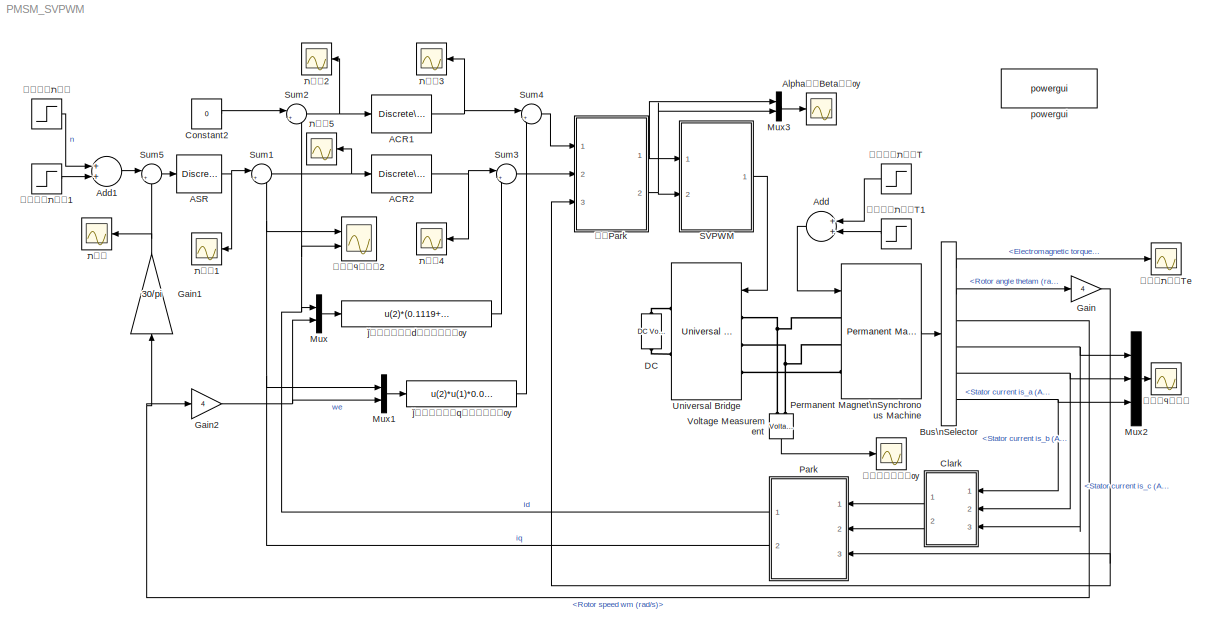
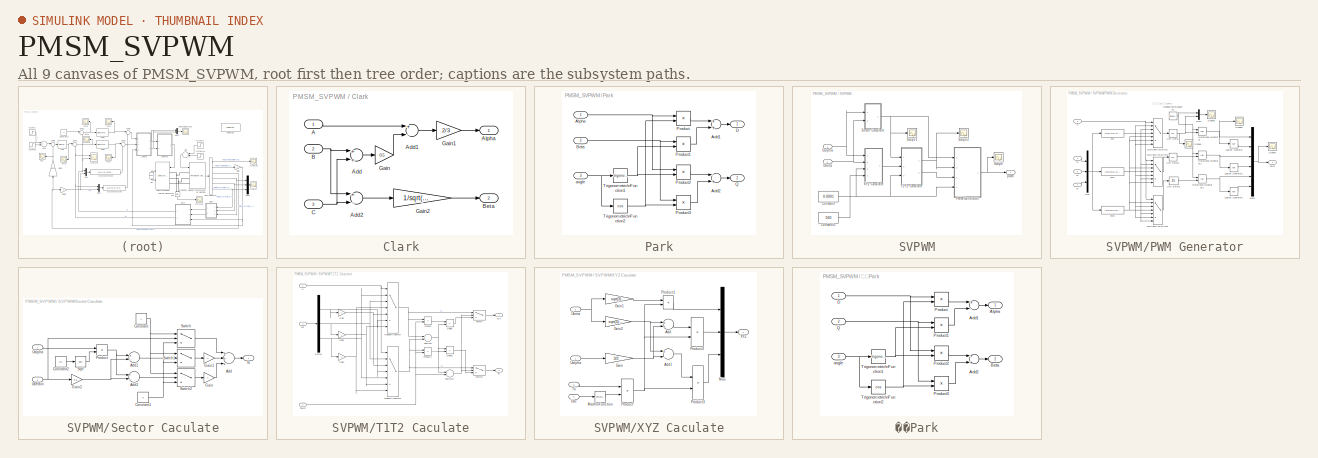
[diagram: thumbnail index - all 9 canvases of the model, root first then tree order]
MODEL PMSM_SVPWM
KIND model
CONFIG InitFcn = flux=0.192;\nLd=0.0006033;\nLq=0.0006668;\nR=0.05;
BLOCK [Reference] ACR1  REF=powerlib_extras/Discrete \nControl Blocks/Discrete\nPI Controller
  Init = 0
  Ki = 80
  Kp = 4
  Par_Limits = [560*0.9*sqrt(1/3) -560*0.9*sqrt(1/3)]
  Ports = [1, 1]
  SID = 353
  SourceBlock = powerlib_extras/Discrete \nControl Blocks/Discrete\nPI Controller
  SourceType = Discrete PI Controller
  Ts = 1e-6
BLOCK [Reference] ACR2  REF=powerlib_extras/Discrete \nControl Blocks/Discrete\nPI Controller
  Init = 0
  Ki = 80
  Kp = 4
  Par_Limits = [560*0.9*sqrt(1/3) -560*0.9*sqrt(1/3)]
  Ports = [1, 1]
  SID = 352
  SourceBlock = powerlib_extras/Discrete \nControl Blocks/Discrete\nPI Controller
  SourceType = Discrete PI Controller
  Ts = 1e-6
BLOCK [Reference] ASR  REF=powerlib_extras/Discrete \nControl Blocks/Discrete\nPI Controller
  Init = 0
  Ki = 200
  Kp = 5
  Par_Limits = [65 -65]
  Ports = [1, 1]
  SID = 350
  SourceBlock = powerlib_extras/Discrete \nControl Blocks/Discrete\nPI Controller
  SourceType = Discrete PI Controller
  Ts = 1e-6
BLOCK [Sum] Add
  InputSameDT = off
  OutDataTypeMode = Inherit via internal rule
  OutDataTypeStr = Inherit: Inherit via internal rule
  Ports = [2, 1]
  SID = 435
  SaturateOnIntegerOverflow = off
BLOCK [Sum] Add1
  InputSameDT = off
  OutDataTypeMode = Inherit via internal rule
  OutDataTypeStr = Inherit: Inherit via internal rule
  Ports = [2, 1]
  SID = 452
  SaturateOnIntegerOverflow = off
BLOCK [Scope] Alpha¡¢BetaµçÑ¹
  DataFormat = StructureWithTime
  Decimation = 1
  Grid = on
  LimitDataPoints = off
  MaxDataPoints = 5000
  Ports = [1]
  SID = 433
  SampleInput = on
  SampleTime = 0.00001
  SaveName = ScopeData10
  SaveToWorkspace = off
  TickLabels = OneTimeTick
  TimeRange = auto
  YMax = 301.59381
  YMin = -109.14429
  ZoomMode = on
BLOCK [BusSelector] Bus\nSelector
  OutputSignals = Electromagnetic torque Te (N*m),Rotor angle thetam (rad),Rotor speed wm (rad/s),Stator current is_c (A),Stator current is_b (A),Stator current is_a (A)
  Ports = [1, 6]
  SID = 264
BLOCK [SubSystem] Clark
  FunctionWithSeparateData = off
  MaskHideContents = off
  MinAlgLoopOccurrences = off
  Opaque = off
  Ports = [3, 2]
  PropExecContextOutsideSubsystem = off
  RTWSystemCode = Auto
  RequestExecContextInheritance = off
  SID = 294
BLOCK [Inport] Clark/A
  IconDisplay = Port number
  SID = 295
BLOCK [Sum] Clark/Add
  InputSameDT = off
  OutDataTypeMode = Inherit via internal rule
  OutDataTypeStr = Inherit: Inherit via internal rule
  Ports = [2, 1]
  SID = 302
  SaturateOnIntegerOverflow = off
BLOCK [Sum] Clark/Add1
  InputSameDT = off
  Inputs = +-
  OutDataTypeMode = Inherit via internal rule
  OutDataTypeStr = Inherit: Inherit via internal rule
  Ports = [2, 1]
  SID = 304
  SaturateOnIntegerOverflow = off
BLOCK [Sum] Clark/Add2
  InputSameDT = off
  Inputs = +-
  OutDataTypeMode = Inherit via internal rule
  OutDataTypeStr = Inherit: Inherit via internal rule
  Ports = [2, 1]
  SID = 306
  SaturateOnIntegerOverflow = off
BLOCK [Outport] Clark/Alpha
  IconDisplay = Port number
  SID = 296
BLOCK [Inport] Clark/B
  IconDisplay = Port number
  Port = 2
  SID = 297
BLOCK [Outport] Clark/Beta
  IconDisplay = Port number
  Port = 2
  SID = 299
BLOCK [Inport] Clark/C
  IconDisplay = Port number
  Port = 3
  SID = 298
BLOCK [Gain] Clark/Gain
  Gain = 0.5
  OutDataTypeMode = Inherit via internal rule
  OutDataTypeStr = Inherit: Inherit via internal rule
  ParamDataTypeStr = Inherit: Inherit via internal rule
  ParameterDataTypeMode = Inherit via internal rule
  SID = 303
  SaturateOnIntegerOverflow = off
BLOCK [Gain] Clark/Gain1
  Gain = 2/3
  OutDataTypeMode = Inherit via internal rule
  OutDataTypeStr = Inherit: Inherit via internal rule
  ParamDataTypeStr = Inherit: Inherit via internal rule
  ParameterDataTypeMode = Inherit via internal rule
  SID = 305
  SaturateOnIntegerOverflow = off
BLOCK [Gain] Clark/Gain2
  Gain = 1/sqrt(3)
  OutDataTypeMode = Inherit via internal rule
  OutDataTypeStr = Inherit: Inherit via internal rule
  ParamDataTypeStr = Inherit: Inherit via internal rule
  ParameterDataTypeMode = Inherit via internal rule
  SID = 307
  SaturateOnIntegerOverflow = off
BLOCK [Constant] Constant2
  SID = 363
  Value = 0
BLOCK [Reference] DC  REF=powerlib/Electrical\nSources/DC Voltage Source
  Amplitude = 560
  Measurements = None
  Ports = [0, 0, 0, 0, 0, 1, 1]
  SID = 257
  SourceBlock = powerlib/Electrical\nSources/DC Voltage Source
  SourceType = DC Voltage Source
BLOCK [Gain] Gain
  Gain = 4
  OutDataTypeMode = Inherit via internal rule
  OutDataTypeStr = Inherit: Inherit via internal rule
  ParamDataTypeStr = Inherit: Inherit via internal rule
  ParameterDataTypeMode = Inherit via internal rule
  SID = 342
  SaturateOnIntegerOverflow = off
BLOCK [Gain] Gain1
  Gain = 30/pi
  OutDataTypeMode = Inherit via internal rule
  OutDataTypeStr = Inherit: Inherit via internal rule
  ParamDataTypeStr = Inherit: Inherit via internal rule
  ParameterDataTypeMode = Inherit via internal rule
  SID = 360
  SaturateOnIntegerOverflow = off
BLOCK [Gain] Gain2
  Gain = 4
  OutDataTypeMode = Inherit via internal rule
  OutDataTypeStr = Inherit: Inherit via internal rule
  ParamDataTypeStr = Inherit: Inherit via internal rule
  ParameterDataTypeMode = Inherit via internal rule
  SID = 361
  SaturateOnIntegerOverflow = off
BLOCK [Mux] Mux
  DisplayOption = bar
  Inputs = 2
  Ports = [2, 1]
  SID = 362
BLOCK [Mux] Mux1
  DisplayOption = bar
  Inputs = 2
  Ports = [2, 1]
  SID = 367
BLOCK [Mux] Mux2
  DisplayOption = bar
  Inputs = 3
  Ports = [3, 1]
  SID = 370
BLOCK [Mux] Mux3
  DisplayOption = bar
  Inputs = 2
  Ports = [2, 1]
  SID = 432
BLOCK [SubSystem] Park
  FunctionWithSeparateData = off
  MaskHideContents = off
  MinAlgLoopOccurrences = off
  Opaque = off
  Ports = [3, 2]
  PropExecContextOutsideSubsystem = off
  RTWSystemCode = Auto
  RequestExecContextInheritance = off
  SID = 328
BLOCK [Sum] Park/Add1
  InputSameDT = off
  OutDataTypeMode = Inherit via internal rule
  OutDataTypeStr = Inherit: Inherit via internal rule
  Ports = [2, 1]
  SID = 332
  SaturateOnIntegerOverflow = off
BLOCK [Sum] Park/Add2
  InputSameDT = off
  Inputs = -+
  OutDataTypeMode = Inherit via internal rule
  OutDataTypeStr = Inherit: Inherit via internal rule
  Ports = [2, 1]
  SID = 333
  SaturateOnIntegerOverflow = off
BLOCK [Inport] Park/Alpha
  IconDisplay = Port number
  SID = 329
BLOCK [Inport] Park/Beta
  IconDisplay = Port number
  Port = 2
  SID = 330
BLOCK [Outport] Park/D
  IconDisplay = Port number
  SID = 340
BLOCK [Product] Park/Product
  InputSameDT = off
  OutDataTypeMode = Inherit via internal rule
  OutDataTypeStr = Inherit: Inherit via internal rule
  Ports = [2, 1]
  RndMeth = Floor
  SID = 334
  SaturateOnIntegerOverflow = off
BLOCK [Product] Park/Product1
  InputSameDT = off
  OutDataTypeMode = Inherit via internal rule
  OutDataTypeStr = Inherit: Inherit via internal rule
  Ports = [2, 1]
  RndMeth = Floor
  SID = 335
  SaturateOnIntegerOverflow = off
BLOCK [Product] Park/Product2
  InputSameDT = off
  OutDataTypeMode = Inherit via internal rule
  OutDataTypeStr = Inherit: Inherit via internal rule
  Ports = [2, 1]
  RndMeth = Floor
  SID = 336
  SaturateOnIntegerOverflow = off
BLOCK [Product] Park/Product3
  InputSameDT = off
  OutDataTypeMode = Inherit via internal rule
  OutDataTypeStr = Inherit: Inherit via internal rule
  Ports = [2, 1]
  RndMeth = Floor
  SID = 337
  SaturateOnIntegerOverflow = off
BLOCK [Outport] Park/Q
  IconDisplay = Port number
  Port = 2
  SID = 341
BLOCK [Trigonometry] Park/Trigonometric\nFunction1
  Ports = [1, 1]
  SID = 338
BLOCK [Trigonometry] Park/Trigonometric\nFunction2
  Operator = cos
  Ports = [1, 1]
  SID = 339
BLOCK [Inport] Park/angle
  IconDisplay = Port number
  Port = 3
  SID = 331
BLOCK [Reference] Permanent Magnet\nSynchronous Machine  REF=powerlib/Machines/Permanent Magnet\nSynchronous Machine
  Flat = 120
  Flux = 0.1119
  FluxDistribution = Sinusoidal
  Inductance = 8.5e-3
  InitialConditions = [0,0, 0,0]
  InitialConditions5ph = [0 0 0 0 0 0]
  La = 0.000835
  MachineConstant = Flux linkage established by magnets (V.s)
  MeasurementBus = off
  Mechanical = [0.016 0.0002024 4 0]
  MechanicalLoad = Torque Tm
  NbPhases = 3
  PolePairs = 4
  Ports = [1, 1, 0, 0, 0, 3]
  PresetModel = No
  RefAngle = Aligned with phase A axis (original Park)
  Resistance = 0.11
  RotorType = Salient-pole
  SID = 416
  ShowDetailedParameters = on
  SourceBlock = powerlib/Machines/Permanent Magnet\nSynchronous Machine
  SourceType = Permanent Magnet Synchronous Machine
  TorqueCst = 0.6714
  TsBlock = -1
  TsPowergui = 0
  VoltageCst = 81.1857
  dqInductances = [0.0009215 0.001018]
BLOCK [SubSystem] SVPWM
  FunctionWithSeparateData = off
  MaskHideContents = off
  MinAlgLoopOccurrences = off
  Opaque = off
  Ports = [2, 1]
  PropExecContextOutsideSubsystem = off
  RTWSystemCode = Auto
  RequestExecContextInheritance = off
  SID = 128
BLOCK [Constant] SVPWM/Constant
  SID = 131
  Value = 0.0001
BLOCK [Constant] SVPWM/Constant1
  SID = 132
  Value = 560
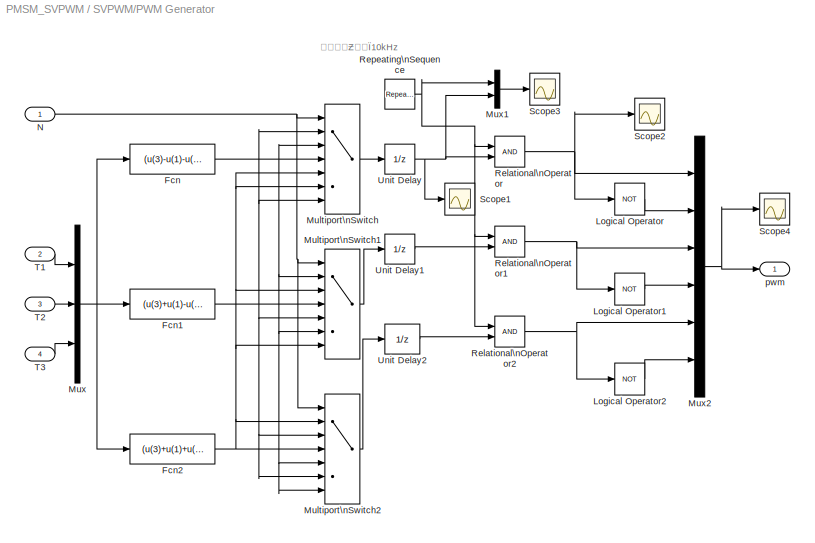
BLOCK [SubSystem] SVPWM/PWM Generator
  FunctionWithSeparateData = off
  MaskHideContents = off
  MinAlgLoopOccurrences = off
  Opaque = off
  Ports = [4, 1]
  PropExecContextOutsideSubsystem = off
  RTWSystemCode = Auto
  RequestExecContextInheritance = off
  SID = 133
BLOCK [Fcn] SVPWM/PWM Generator/Fcn
  Expr = (u(3)-u(1)-u(2))/4
  SID = 141
BLOCK [Fcn] SVPWM/PWM Generator/Fcn1
  Expr = (u(3)+u(1)-u(2))/4
  SID = 142
BLOCK [Fcn] SVPWM/PWM Generator/Fcn2
  Expr = (u(3)+u(1)+u(2))/4
  SID = 143
BLOCK [Logic] SVPWM/PWM Generator/Logical Operator
  AllPortsSameDT = off
  Operator = NOT
  OutDataTypeMode = boolean
  OutDataTypeStr = boolean
  Ports = [1, 1]
  SID = 144
BLOCK [Logic] SVPWM/PWM Generator/Logical Operator1
  AllPortsSameDT = off
  Operator = NOT
  OutDataTypeMode = boolean
  OutDataTypeStr = boolean
  Ports = [1, 1]
  SID = 145
BLOCK [Logic] SVPWM/PWM Generator/Logical Operator2
  AllPortsSameDT = off
  Operator = NOT
  OutDataTypeMode = boolean
  OutDataTypeStr = boolean
  Ports = [1, 1]
  SID = 146
BLOCK [MultiPortSwitch] SVPWM/PWM Generator/Multiport\nSwitch
  InputSameDT = off
  Inputs = 6
  Ports = [7, 1]
  SID = 147
  SaturateOnIntegerOverflow = off
BLOCK [MultiPortSwitch] SVPWM/PWM Generator/Multiport\nSwitch1
  InputSameDT = off
  Inputs = 6
  Ports = [7, 1]
  SID = 148
  SaturateOnIntegerOverflow = off
BLOCK [MultiPortSwitch] SVPWM/PWM Generator/Multiport\nSwitch2
  InputSameDT = off
  Inputs = 6
  Ports = [7, 1]
  SID = 149
  SaturateOnIntegerOverflow = off
BLOCK [Mux] SVPWM/PWM Generator/Mux
  DisplayOption = bar
  Inputs = 3
  Ports = [3, 1]
  SID = 150
BLOCK [Mux] SVPWM/PWM Generator/Mux1
  DisplayOption = bar
  Inputs = 2
  Ports = [2, 1]
  SID = 439
BLOCK [Mux] SVPWM/PWM Generator/Mux2
  DisplayOption = bar
  Inputs = 6
  Ports = [6, 1]
  SID = 151
BLOCK [Inport] SVPWM/PWM Generator/N
  IconDisplay = Port number
  SID = 134
BLOCK [RelationalOperator] SVPWM/PWM Generator/Relational\nOperator
  InputSameDT = off
  LogicOutDataTypeMode = boolean
  OutDataTypeStr = boolean
  Ports = [2, 1]
  SID = 154
BLOCK [RelationalOperator] SVPWM/PWM Generator/Relational\nOperator1
  InputSameDT = off
  LogicOutDataTypeMode = boolean
  OutDataTypeStr = boolean
  Ports = [2, 1]
  SID = 155
BLOCK [RelationalOperator] SVPWM/PWM Generator/Relational\nOperator2
  InputSameDT = off
  LogicOutDataTypeMode = boolean
  OutDataTypeStr = boolean
  Ports = [2, 1]
  SID = 156
BLOCK [Reference] SVPWM/PWM Generator/Repeating\nSequence  REF=simulink/Sources/Repeating\nSequence
  Ports = [0, 1]
  SID = 157
  SourceBlock = simulink/Sources/Repeating\nSequence
  SourceType = Repeating table
  rep_seq_t = [0 0.00005 0.0001]
  rep_seq_y = [0 0.00005 0]
BLOCK [Scope] SVPWM/PWM Generator/Scope1
  DataFormat = Array
  Decimation = 1
  Grid = on
  LimitDataPoints = off
  MaxDataPoints = 5000
  Ports = [1]
  SID = 158
  SampleInput = off
  SampleTime = -1
  SaveName = ScopeData1
  SaveToWorkspace = off
  TickLabels = OneTimeTick
  TimeRange = auto
  YMax = 0.000036
  YMin = -0.000004
  ZoomMode = on
BLOCK [Scope] SVPWM/PWM Generator/Scope2
  DataFormat = Array
  Decimation = 1
  Grid = on
  LimitDataPoints = off
  MaxDataPoints = 5000
  Ports = [1]
  SID = 159
  SampleInput = off
  SampleTime = -1
  SaveName = ScopeData3
  SaveToWorkspace = off
  TickLabels = OneTimeTick
  TimeRange = auto
  YMax = 1.125
  YMin = -0.125
  ZoomMode = on
BLOCK [Scope] SVPWM/PWM Generator/Scope3
  DataFormat = Array
  Decimation = 1
  Grid = on
  LimitDataPoints = off
  MaxDataPoints = 5000
  Ports = [1]
  SID = 438
  SampleInput = on
  SampleTime = 0.000001
  SaveName = ScopeData4
  SaveToWorkspace = off
  TickLabels = OneTimeTick
  TimeRange = auto
  YMax = 0.000056
  YMin = -0.000006
  ZoomMode = on
BLOCK [Scope] SVPWM/PWM Generator/Scope4
  DataFormat = Array
  Decimation = 1
  Grid = on
  LimitDataPoints = off
  MaxDataPoints = 5000
  Ports = [1]
  SID = 161
  SampleInput = off
  SampleTime = -1
  SaveName = ScopeData6
  SaveToWorkspace = off
  TickLabels = OneTimeTick
  TimeRange = auto
  YMax = 10
  YMin = -10
  ZoomMode = on
BLOCK [Inport] SVPWM/PWM Generator/T1
  IconDisplay = Port number
  Port = 2
  SID = 135
BLOCK [Inport] SVPWM/PWM Generator/T2
  IconDisplay = Port number
  Port = 3
  SID = 136
BLOCK [Inport] SVPWM/PWM Generator/T3
  IconDisplay = Port number
  Port = 4
  SID = 137
BLOCK [UnitDelay] SVPWM/PWM Generator/Unit Delay
  SID = 440
  SampleTime = 0.0001
BLOCK [UnitDelay] SVPWM/PWM Generator/Unit Delay1
  SID = 441
  SampleTime = 0.0001
BLOCK [UnitDelay] SVPWM/PWM Generator/Unit Delay2
  SID = 442
  SampleTime = 0.0001
BLOCK [Outport] SVPWM/PWM Generator/pwm
  IconDisplay = Port number
  SID = 162
BLOCK [Scope] SVPWM/Scope
  DataFormat = Array
  Decimation = 1
  Grid = on
  LimitDataPoints = off
  MaxDataPoints = 5000
  Ports = [1]
  SID = 164
  SampleInput = off
  SampleTime = -1
  SaveName = ScopeData
  SaveToWorkspace = off
  TickLabels = OneTimeTick
  TimeRange = auto
  YMax = 10
  YMin = -10
  ZoomMode = on
BLOCK [Scope] SVPWM/Scope1
  DataFormat = Array
  Decimation = 1
  Grid = on
  LimitDataPoints = off
  MaxDataPoints = 5000
  Ports = [1]
  SID = 165
  SampleInput = off
  SampleTime = -1
  SaveName = ScopeData2
  SaveToWorkspace = off
  TickLabels = OneTimeTick
  TimeRange = auto
  YMax = 6.625
  YMin = 0.375
  ZoomMode = on
BLOCK [Scope] SVPWM/Scope2
  DataFormat = Array
  Decimation = 1
  Grid = on
  LimitDataPoints = off
  MaxDataPoints = 5000
  Ports = [1]
  SID = 410
  SampleInput = off
  SampleTime = -1
  SaveName = ScopeData23
  SaveToWorkspace = off
  TickLabels = OneTimeTick
  TimeRange = auto
  YMax = 10
  YMin = -10
  ZoomMode = on
BLOCK [SubSystem] SVPWM/Sector Caculate
  FunctionWithSeparateData = off
  MaskHideContents = off
  MinAlgLoopOccurrences = off
  Opaque = off
  Ports = [2, 1]
  PropExecContextOutsideSubsystem = off
  RTWSystemCode = Auto
  RequestExecContextInheritance = off
  SID = 168
BLOCK [Sum] SVPWM/Sector Caculate/Add
  InputSameDT = off
  Inputs = +++
  OutDataTypeMode = Inherit via internal rule
  OutDataTypeStr = Inherit: Inherit via internal rule
  Ports = [3, 1]
  SID = 273
  SaturateOnIntegerOverflow = off
BLOCK [Sum] SVPWM/Sector Caculate/Add1
  InputSameDT = off
  Inputs = +-
  OutDataTypeMode = Inherit via internal rule
  OutDataTypeStr = Inherit: Inherit via internal rule
  Ports = [2, 1]
  SID = 281
  SaturateOnIntegerOverflow = off
BLOCK [Sum] SVPWM/Sector Caculate/Add2
  InputSameDT = off
  Inputs = --
  OutDataTypeMode = Inherit via internal rule
  OutDataTypeStr = Inherit: Inherit via internal rule
  Ports = [2, 1]
  SID = 284
  SaturateOnIntegerOverflow = off
BLOCK [Constant] SVPWM/Sector Caculate/Constant
  SID = 171
BLOCK [Constant] SVPWM/Sector Caculate/Constant1
  SID = 172
  Value = 0
BLOCK [Constant] SVPWM/Sector Caculate/Constant2
  SID = 280
  Value = 3/4
BLOCK [Gain] SVPWM/Sector Caculate/Gain
  Gain = 4
  OutDataTypeMode = Inherit via internal rule
  OutDataTypeStr = Inherit: Inherit via internal rule
  ParamDataTypeStr = Inherit: Inherit via internal rule
  ParameterDataTypeMode = Inherit via internal rule
  SID = 275
  SaturateOnIntegerOverflow = off
BLOCK [Gain] SVPWM/Sector Caculate/Gain1
  Gain = 2
  OutDataTypeMode = Inherit via internal rule
  OutDataTypeStr = Inherit: Inherit via internal rule
  ParamDataTypeStr = Inherit: Inherit via internal rule
  ParameterDataTypeMode = Inherit via internal rule
  SID = 276
  SaturateOnIntegerOverflow = off
BLOCK [Gain] SVPWM/Sector Caculate/Gain2
  Gain = 0.5
  OutDataTypeMode = Inherit via internal rule
  OutDataTypeStr = Inherit: Inherit via internal rule
  ParamDataTypeStr = Inherit: Inherit via internal rule
  ParameterDataTypeMode = Inherit via internal rule
  SID = 283
  SaturateOnIntegerOverflow = off
BLOCK [Outport] SVPWM/Sector Caculate/N
  IconDisplay = Port number
  SID = 182
BLOCK [Product] SVPWM/Sector Caculate/Product
  InputSameDT = off
  OutDataTypeMode = Inherit via internal rule
  OutDataTypeStr = Inherit: Inherit via internal rule
  Ports = [2, 1]
  RndMeth = Floor
  SID = 279
  SaturateOnIntegerOverflow = off
BLOCK [Sqrt] SVPWM/Sector Caculate/Sqrt
  SID = 277
BLOCK [Switch] SVPWM/Sector Caculate/Switch
  Criteria = u2 > Threshold
  InputSameDT = off
  SID = 179
  SaturateOnIntegerOverflow = off
BLOCK [Switch] SVPWM/Sector Caculate/Switch1
  Criteria = u2 > Threshold
  InputSameDT = off
  SID = 180
  SaturateOnIntegerOverflow = off
BLOCK [Switch] SVPWM/Sector Caculate/Switch2
  Criteria = u2 > Threshold
  InputSameDT = off
  SID = 181
  SaturateOnIntegerOverflow = off
BLOCK [Inport] SVPWM/Sector Caculate/Ualpha
  IconDisplay = Port number
  SID = 169
BLOCK [Inport] SVPWM/Sector Caculate/Ubeta\n
  IconDisplay = Port number
  Port = 2
  SID = 170
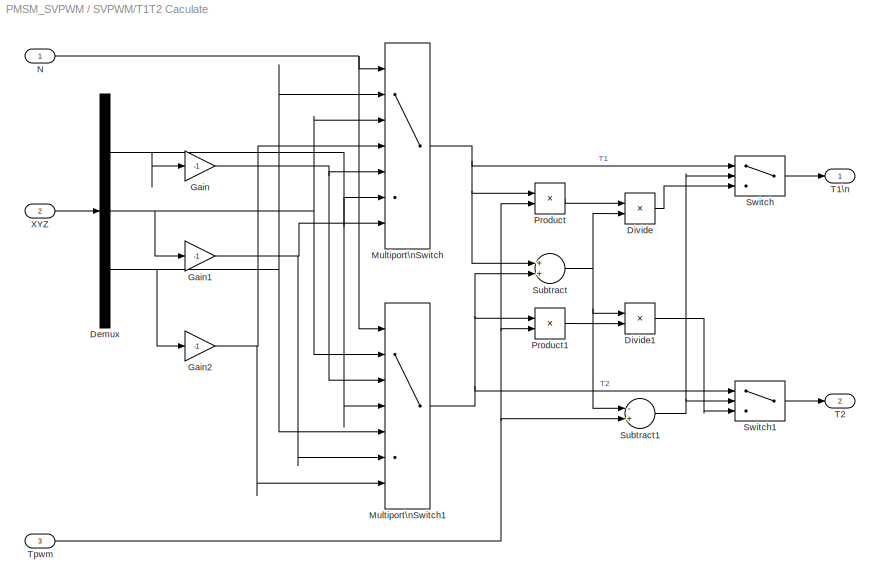
BLOCK [SubSystem] SVPWM/T1T2 Caculate
  FunctionWithSeparateData = off
  MaskHideContents = off
  MinAlgLoopOccurrences = off
  Opaque = off
  Ports = [3, 2]
  PropExecContextOutsideSubsystem = off
  RTWSystemCode = Auto
  RequestExecContextInheritance = off
  SID = 185
BLOCK [Demux] SVPWM/T1T2 Caculate/Demux
  DisplayOption = bar
  Outputs = 3
  Ports = [1, 3]
  SID = 189
BLOCK [Product] SVPWM/T1T2 Caculate/Divide
  InputSameDT = off
  Inputs = */
  OutDataTypeMode = Inherit via internal rule
  OutDataTypeStr = Inherit: Inherit via internal rule
  Ports = [2, 1]
  RndMeth = Floor
  SID = 287
  SaturateOnIntegerOverflow = off
BLOCK [Product] SVPWM/T1T2 Caculate/Divide1
  InputSameDT = off
  Inputs = /*
  OutDataTypeMode = Inherit via internal rule
  OutDataTypeStr = Inherit: Inherit via internal rule
  Ports = [2, 1]
  RndMeth = Floor
  SID = 289
  SaturateOnIntegerOverflow = off
BLOCK [Gain] SVPWM/T1T2 Caculate/Gain
  Gain = -1
  OutDataTypeMode = Inherit via internal rule
  OutDataTypeStr = Inherit: Inherit via internal rule
  ParamDataTypeStr = Inherit: Inherit via internal rule
  ParameterDataTypeMode = Inherit via internal rule
  SID = 193
  SaturateOnIntegerOverflow = off
BLOCK [Gain] SVPWM/T1T2 Caculate/Gain1
  Gain = -1
  OutDataTypeMode = Inherit via internal rule
  OutDataTypeStr = Inherit: Inherit via internal rule
  ParamDataTypeStr = Inherit: Inherit via internal rule
  ParameterDataTypeMode = Inherit via internal rule
  SID = 194
  SaturateOnIntegerOverflow = off
BLOCK [Gain] SVPWM/T1T2 Caculate/Gain2
  Gain = -1
  OutDataTypeMode = Inherit via internal rule
  OutDataTypeStr = Inherit: Inherit via internal rule
  ParamDataTypeStr = Inherit: Inherit via internal rule
  ParameterDataTypeMode = Inherit via internal rule
  SID = 195
  SaturateOnIntegerOverflow = off
BLOCK [MultiPortSwitch] SVPWM/T1T2 Caculate/Multiport\nSwitch
  InputSameDT = off
  Inputs = 6
  Ports = [7, 1]
  SID = 196
  SaturateOnIntegerOverflow = off
BLOCK [MultiPortSwitch] SVPWM/T1T2 Caculate/Multiport\nSwitch1
  InputSameDT = off
  Inputs = 6
  Ports = [7, 1]
  SID = 197
  SaturateOnIntegerOverflow = off
BLOCK [Inport] SVPWM/T1T2 Caculate/N
  IconDisplay = Port number
  SID = 186
BLOCK [Product] SVPWM/T1T2 Caculate/Product
  InputSameDT = off
  OutDataTypeMode = Inherit via internal rule
  OutDataTypeStr = Inherit: Inherit via internal rule
  Ports = [2, 1]
  RndMeth = Floor
  SID = 286
  SaturateOnIntegerOverflow = off
BLOCK [Product] SVPWM/T1T2 Caculate/Product1
  InputSameDT = off
  OutDataTypeMode = Inherit via internal rule
  OutDataTypeStr = Inherit: Inherit via internal rule
  Ports = [2, 1]
  RndMeth = Floor
  SID = 288
  SaturateOnIntegerOverflow = off
BLOCK [Sum] SVPWM/T1T2 Caculate/Subtract
  InputSameDT = off
  OutDataTypeMode = Inherit via internal rule
  OutDataTypeStr = Inherit: Inherit via internal rule
  Ports = [2, 1]
  SID = 285
  SaturateOnIntegerOverflow = off
BLOCK [Sum] SVPWM/T1T2 Caculate/Subtract1
  InputSameDT = off
  Inputs = -+
  OutDataTypeMode = Inherit via internal rule
  OutDataTypeStr = Inherit: Inherit via internal rule
  Ports = [2, 1]
  SID = 290
  SaturateOnIntegerOverflow = off
BLOCK [Switch] SVPWM/T1T2 Caculate/Switch
  Criteria = u2 > Threshold
  InputSameDT = off
  SID = 199
  SaturateOnIntegerOverflow = off
BLOCK [Switch] SVPWM/T1T2 Caculate/Switch1
  Criteria = u2 > Threshold
  InputSameDT = off
  SID = 200
  SaturateOnIntegerOverflow = off
BLOCK [Outport] SVPWM/T1T2 Caculate/T1\n
  IconDisplay = Port number
  SID = 201
BLOCK [Outport] SVPWM/T1T2 Caculate/T2
  IconDisplay = Port number
  Port = 2
  SID = 202
BLOCK [Inport] SVPWM/T1T2 Caculate/Tpwm
  IconDisplay = Port number
  Port = 3
  SID = 188
BLOCK [Inport] SVPWM/T1T2 Caculate/XYZ
  IconDisplay = Port number
  Port = 2
  SID = 187
BLOCK [Inport] SVPWM/Ualpha
  IconDisplay = Port number
  SID = 343
BLOCK [Inport] SVPWM/Ubeta
  IconDisplay = Port number
  Port = 2
  SID = 344
BLOCK [SubSystem] SVPWM/XYZ Caculate
  FunctionWithSeparateData = off
  MaskHideContents = off
  MinAlgLoopOccurrences = off
  Opaque = off
  Ports = [4, 1]
  PropExecContextOutsideSubsystem = off
  RTWSystemCode = Auto
  RequestExecContextInheritance = off
  SID = 203
BLOCK [Sum] SVPWM/XYZ Caculate/Add
  InputSameDT = off
  OutDataTypeMode = Inherit via internal rule
  OutDataTypeStr = Inherit: Inherit via internal rule
  Ports = [2, 1]
  SID = 208
  SaturateOnIntegerOverflow = off
BLOCK [Sum] SVPWM/XYZ Caculate/Add1
  InputSameDT = off
  Inputs = +-
  OutDataTypeMode = Inherit via internal rule
  OutDataTypeStr = Inherit: Inherit via internal rule
  Ports = [2, 1]
  SID = 209
  SaturateOnIntegerOverflow = off
BLOCK [Gain] SVPWM/XYZ Caculate/Gain
  Gain = 3/2
  OutDataTypeMode = Inherit via internal rule
  OutDataTypeStr = Inherit: Inherit via internal rule
  ParamDataTypeStr = Inherit: Inherit via internal rule
  ParameterDataTypeMode = Inherit via internal rule
  SID = 210
  SaturateOnIntegerOverflow = off
BLOCK [Gain] SVPWM/XYZ Caculate/Gain1
  Gain = sqrt(3)
  OutDataTypeMode = Inherit via internal rule
  OutDataTypeStr = Inherit: Inherit via internal rule
  ParamDataTypeStr = Inherit: Inherit via internal rule
  ParameterDataTypeMode = Inherit via internal rule
  SID = 211
  SaturateOnIntegerOverflow = off
BLOCK [Gain] SVPWM/XYZ Caculate/Gain2
  Gain = sqrt(3)/2
  OutDataTypeMode = Inherit via internal rule
  OutDataTypeStr = Inherit: Inherit via internal rule
  ParamDataTypeStr = Inherit: Inherit via internal rule
  ParameterDataTypeMode = Inherit via internal rule
  SID = 212
  SaturateOnIntegerOverflow = off
BLOCK [Math] SVPWM/XYZ Caculate/Math\nFunction
  Operator = reciprocal
  Ports = [1, 1]
  SID = 213
BLOCK [Mux] SVPWM/XYZ Caculate/Mux
  DisplayOption = bar
  Inputs = 3
  Ports = [3, 1]
  SID = 214
BLOCK [Product] SVPWM/XYZ Caculate/Product
  InputSameDT = off
  OutDataTypeMode = Inherit via internal rule
  OutDataTypeStr = Inherit: Inherit via internal rule
  Ports = [2, 1]
  RndMeth = Floor
  SID = 215
  SaturateOnIntegerOverflow = off
BLOCK [Product] SVPWM/XYZ Caculate/Product1
  InputSameDT = off
  OutDataTypeMode = Inherit via internal rule
  OutDataTypeStr = Inherit: Inherit via internal rule
  Ports = [2, 1]
  RndMeth = Floor
  SID = 216
  SaturateOnIntegerOverflow = off
BLOCK [Product] SVPWM/XYZ Caculate/Product2
  InputSameDT = off
  OutDataTypeMode = Inherit via internal rule
  OutDataTypeStr = Inherit: Inherit via internal rule
  Ports = [2, 1]
  RndMeth = Floor
  SID = 217
  SaturateOnIntegerOverflow = off
BLOCK [Product] SVPWM/XYZ Caculate/Product3
  InputSameDT = off
  OutDataTypeMode = Inherit via internal rule
  OutDataTypeStr = Inherit: Inherit via internal rule
  Ports = [2, 1]
  RndMeth = Floor
  SID = 218
  SaturateOnIntegerOverflow = off
BLOCK [Inport] SVPWM/XYZ Caculate/Ts
  IconDisplay = Port number
  Port = 3
  SID = 206
BLOCK [Inport] SVPWM/XYZ Caculate/Ualpha
  IconDisplay = Port number
  SID = 204
BLOCK [Inport] SVPWM/XYZ Caculate/Ubeta
  IconDisplay = Port number
  Port = 2
  SID = 205
BLOCK [Inport] SVPWM/XYZ Caculate/Udc
  IconDisplay = Port number
  Port = 4
  SID = 207
BLOCK [Outport] SVPWM/XYZ Caculate/XYZ
  IconDisplay = Port number
  SID = 219
BLOCK [Outport] SVPWM/pwm
  IconDisplay = Port number
  SID = 255
BLOCK [Sum] Sum1
  IconShape = round
  InputSameDT = off
  Inputs = |+-
  OutDataTypeMode = Inherit via internal rule
  OutDataTypeStr = Inherit: Inherit via internal rule
  Ports = [2, 1]
  SID = 355
  SaturateOnIntegerOverflow = off
BLOCK [Sum] Sum2
  IconShape = round
  InputSameDT = off
  Inputs = |+-
  OutDataTypeMode = Inherit via internal rule
  OutDataTypeStr = Inherit: Inherit via internal rule
  Ports = [2, 1]
  SID = 356
  SaturateOnIntegerOverflow = off
BLOCK [Sum] Sum3
  IconShape = round
  InputSameDT = off
  Inputs = |++
  OutDataTypeMode = Inherit via internal rule
  OutDataTypeStr = Inherit: Inherit via internal rule
  Ports = [2, 1]
  SID = 357
  SaturateOnIntegerOverflow = off
BLOCK [Sum] Sum4
  IconShape = round
  InputSameDT = off
  Inputs = |+-
  OutDataTypeMode = Inherit via internal rule
  OutDataTypeStr = Inherit: Inherit via internal rule
  Ports = [2, 1]
  SID = 358
  SaturateOnIntegerOverflow = off
BLOCK [Sum] Sum5
  IconShape = round
  InputSameDT = off
  Inputs = |+-
  OutDataTypeMode = Inherit via internal rule
  OutDataTypeStr = Inherit: Inherit via internal rule
  Ports = [2, 1]
  SID = 359
  SaturateOnIntegerOverflow = off
BLOCK [Reference] Universal Bridge  REF=powerlib/Power\nElectronics/Universal Bridge
  Arms = 3
  Device = IGBT / Diodes
  ForwardVoltage = 0
  ForwardVoltages = [  0  0  ]
  GTOparameters = [ 10e-6 , 20e-6 ]
  IGBTparameters = [ 1e-6 , 2e-6 ]
  Lon = 0
  Measurements = None
  Measurements_2 = None
  Ports = [1, 0, 0, 0, 0, 3, 2]
  Ron = 1e-3
  SID = 258
  SnubberCapacitance = inf
  SnubberResistance = 1e5
  SourceBlock = powerlib/Power\nElectronics/Universal Bridge
  SourceType = Universal Bridge
  converterType = Rectifier
BLOCK [Reference] Voltage Measurement  REF=powerlib/Measurements/Voltage Measurement
  OutputType = Complex
  PSBequivalent = 0
  PhasorSimulation = off
  Ports = [0, 1, 0, 0, 0, 2]
  SID = 260
  SourceBlock = powerlib/Measurements/Voltage Measurement
  SourceType = Voltage Measurement
  UserDataPersistent = on
BLOCK [Reference] powergui  REF=powerlib/powergui
  DisableRonSwitches = off
  DisableSnubberDevices = off
  DisableVfSwitches = off
  DisplayEquations = off
  DisplayStyle = 1
  EnableUseOfTLC = off
  ErrMax = 1e-4
  ExternalGateDelay = off
  Frange = [0:2:500]
  FreqAxis = off
  FunctionMessages = off
  HookPort = off
  Interpol = off
  Iterations = 50
  MaxFrequency = 2000
  Pbase = 100e6
  Ports = []
  Priority = 1
  ResistiveCurrentMeasurement = off
  RestoreLinks = warning
  RmsSteady = 1
  SID = 256
  SPID = off
  SampleTime = 1e-6
  ShowGrid = off
  SolverType = Tustin
  SourceBlock = powerlib/powergui
  SourceType = PSB option menu block
  StartTime = 2.5
  SwTol = 0
  Ts = 0
  UnitsV = kV
  UnitsW = MW
  UserData = DataTag0
  UserDataPersistent = on
  Xlog = on
  Ylog = off
  ZoomFFT = on
  buscounter = 0
  cycles = 3
  display = off
  echomessages = off
  frequency = 60
  frequencyindice = 0
  frequencyindicesteady = 1
  fundamental = 60
  methode = off
  save = off
  structure = ScopeData7
  variable = ZData
  x0status = blocks
BLOCK [Scope] 电磁转矩Te
  DataFormat = StructureWithTime
  Decimation = 1
  Grid = on
  LimitDataPoints = off
  MaxDataPoints = 5000
  Ports = [1]
  SID = 346
  SampleInput = on
  SampleTime = 0.00001
  SaveName = ScopeData51
  SaveToWorkspace = on
  TickLabels = OneTimeTick
  TimeRange = auto
  YMax = 54.90269
  YMin = -11.94167
  ZoomMode = on
BLOCK [Scope] 定子电流
  DataFormat = StructureWithTime
  Decimation = 1
  Grid = on
  LimitDataPoints = off
  MaxDataPoints = 5000
  Ports = [1]
  SID = 345
  SampleInput = on
  SampleTime = 0.00001
  SaveName = ScopeData52
  SaveToWorkspace = on
  TickLabels = OneTimeTick
  TimeRange = auto
  YMax = 82.38549
  YMin = -82.78425
  ZoomMode = on
BLOCK [Scope] 定子电流2
  DataFormat = StructureWithTime
  Decimation = 1
  Grid = on
  LimitDataPoints = off
  MaxDataPoints = 5000
  NumInputPorts = 2
  Ports = [2]
  SID = 446
  SampleInput = off
  SampleTime = -1
  SaveName = ScopeData2
  SaveToWorkspace = off
  TickLabels = OneTimeTick
  TimeRange = auto
  YMax = 81.81327~5
  YMin = -17.88759~-5
  ZoomMode = on
BLOCK [Scope] 定子线电压
  DataFormat = StructureWithTime
  Decimation = 1
  Grid = on
  LimitDataPoints = off
  MaxDataPoints = 5000
  Ports = [1]
  SID = 261
  SampleInput = on
  SampleTime = 0.00001
  SaveName = ScopeData7
  SaveToWorkspace = off
  TickLabels = OneTimeTick
  TimeRange = auto
  YMax = 10
  YMin = -10
  ZoomMode = on
BLOCK [SubSystem] ·´Park
  FunctionWithSeparateData = off
  MaskHideContents = off
  MinAlgLoopOccurrences = off
  Opaque = off
  Ports = [3, 2]
  PropExecContextOutsideSubsystem = off
  RTWSystemCode = Auto
  RequestExecContextInheritance = off
  SID = 308
BLOCK [Sum] ·´Park/Add1
  InputSameDT = off
  Inputs = +-
  OutDataTypeMode = Inherit via internal rule
  OutDataTypeStr = Inherit: Inherit via internal rule
  Ports = [2, 1]
  SID = 324
  SaturateOnIntegerOverflow = off
BLOCK [Sum] ·´Park/Add2
  InputSameDT = off
  OutDataTypeMode = Inherit via internal rule
  OutDataTypeStr = Inherit: Inherit via internal rule
  Ports = [2, 1]
  SID = 327
  SaturateOnIntegerOverflow = off
BLOCK [Outport] ·´Park/Alpha
  IconDisplay = Port number
  SID = 318
BLOCK [Outport] ·´Park/Beta
  IconDisplay = Port number
  Port = 2
  SID = 319
BLOCK [Inport] ·´Park/D
  IconDisplay = Port number
  SID = 387
BLOCK [Product] ·´Park/Product
  InputSameDT = off
  OutDataTypeMode = Inherit via internal rule
  OutDataTypeStr = Inherit: Inherit via internal rule
  Ports = [2, 1]
  RndMeth = Floor
  SID = 301
  SaturateOnIntegerOverflow = off
BLOCK [Product] ·´Park/Product1
  InputSameDT = off
  OutDataTypeMode = Inherit via internal rule
  OutDataTypeStr = Inherit: Inherit via internal rule
  Ports = [2, 1]
  RndMeth = Floor
  SID = 323
  SaturateOnIntegerOverflow = off
BLOCK [Product] ·´Park/Product2
  InputSameDT = off
  OutDataTypeMode = Inherit via internal rule
  OutDataTypeStr = Inherit: Inherit via internal rule
  Ports = [2, 1]
  RndMeth = Floor
  SID = 325
  SaturateOnIntegerOverflow = off
BLOCK [Product] ·´Park/Product3
  InputSameDT = off
  OutDataTypeMode = Inherit via internal rule
  OutDataTypeStr = Inherit: Inherit via internal rule
  Ports = [2, 1]
  RndMeth = Floor
  SID = 326
  SaturateOnIntegerOverflow = off
BLOCK [Inport] ·´Park/Q
  IconDisplay = Port number
  Port = 2
  SID = 386
BLOCK [Trigonometry] ·´Park/Trigonometric\nFunction1
  Ports = [1, 1]
  SID = 320
BLOCK [Trigonometry] ·´Park/Trigonometric\nFunction2
  Operator = cos
  Ports = [1, 1]
  SID = 322
BLOCK [Inport] ·´Park/angle
  IconDisplay = Port number
  Port = 3
  SID = 311
BLOCK [Step] 负载转矩T
  After = 20
  SID = 436
  SampleTime = 0
  Time = 0.5
BLOCK [Step] 负载转矩T1
  After = 0
  SID = 437
  SampleTime = 0
  Time = 0.03
BLOCK [Step] 给定转速
  After = 1000
  Before = 1000
  SID = 423
  SampleTime = 0
  Time = 0
BLOCK [Step] 给定转速1
  After = 200
  SID = 455
  SampleTime = 0
  Time = 0.7
BLOCK [Fcn] 前馈解耦d轴补偿电压
  Expr = u(2)*(0.1119+u(1)*0.0009215)
  SID = 365
BLOCK [Fcn] 前馈解耦q轴补偿电压
  Expr = u(2)*u(1)*0.001018
  SID = 366
BLOCK [Scope] ×ªËÙ
  DataFormat = StructureWithTime
  Decimation = 1
  Grid = on
  LimitDataPoints = off
  MaxDataPoints = 5000
  Ports = [1]
  SID = 368
  SampleInput = on
  SampleTime = 0.00001
  SaveName = ScopeData50
  SaveToWorkspace = on
  TickLabels = OneTimeTick
  TimeRange = auto
  YMax = 1358.41108
  YMin = -150.93456
  ZoomMode = on
BLOCK [Scope] ×ªËÙ1
  DataFormat = StructureWithTime
  Decimation = 1
  Grid = on
  LimitDataPoints = off
  MaxDataPoints = 5000
  Ports = [1]
  SID = 434
  SampleInput = on
  SampleTime = 0.00001
  SaveName = ScopeData9
  SaveToWorkspace = on
  TickLabels = OneTimeTick
  TimeRange = auto
  YMax = 73.79529
  YMin = -14.15759
  ZoomMode = on
BLOCK [Scope] ×ªËÙ2
  DataFormat = StructureWithTime
  Decimation = 1
  Grid = on
  LimitDataPoints = off
  MaxDataPoints = 5000
  Ports = [1]
  SID = 448
  SampleInput = off
  SampleTime = -1
  SaveName = ScopeData1
  SaveToWorkspace = off
  TickLabels = OneTimeTick
  TimeRange = auto
  YMax = 5.03105
  YMin = -4.39427
  ZoomMode = on
BLOCK [Scope] ×ªËÙ3
  DataFormat = StructureWithTime
  Decimation = 1
  Grid = on
  LimitDataPoints = off
  MaxDataPoints = 5000
  Ports = [1]
  SID = 449
  SampleInput = off
  SampleTime = -1
  SaveName = ScopeData2
  SaveToWorkspace = off
  TickLabels = OneTimeTick
  TimeRange = auto
  YMax = 19.40181
  YMin = -17.49237
  ZoomMode = on
BLOCK [Scope] ×ªËÙ4
  DataFormat = StructureWithTime
  Decimation = 1
  Grid = on
  LimitDataPoints = off
  MaxDataPoints = 5000
  Ports = [1]
  SID = 450
  SampleInput = off
  SampleTime = -1
  SaveName = ScopeData3
  SaveToWorkspace = off
  TickLabels = OneTimeTick
  TimeRange = auto
  YMax = 310.21147
  YMin = -186.70323
  ZoomMode = on
BLOCK [Scope] ×ªËÙ5
  DataFormat = Array
  Decimation = 1
  Grid = on
  LimitDataPoints = on
  MaxDataPoints = 5000
  Ports = [1]
  SID = 451
  SampleInput = off
  SampleTime = -1
  SaveName = ScopeData4
  SaveToWorkspace = off
  TickLabels = OneTimeTick
  TimeRange = auto
  YMax = 10
  YMin = -10
  ZoomMode = on
ANNOTATION SVPWM/PWM Generator: ²ÉÑùÆµÂÊÎª10kHz
NET ACR1:1 -> Sum4:1, ×ªËÙ3:1
NET ACR2:1 -> Sum3:1, ×ªËÙ4:1
NET ASR:1 -> Sum1:1, ×ªËÙ1:1
LINE Add1:1 -> Sum5:1
LINE Add:1 -> Permanent Magnet\nSynchronous Machine:1
LINE Bus\nSelector:1 -> 电磁转矩Te:1
LINE Bus\nSelector:2 -> Gain:1
NET Bus\nSelector:3 -> Gain1:1, Gain2:1
NET Bus\nSelector:4 -> Clark:3, Mux2:1
NET Bus\nSelector:5 -> Clark:2, Mux2:2
NET Bus\nSelector:6 -> Clark:1, Mux2:3
LINE Clark/A:1 -> Clark/Add1:1
LINE Clark/Add1:1 -> Clark/Gain1:1
LINE Clark/Add2:1 -> Clark/Gain2:1
LINE Clark/Add:1 -> Clark/Gain:1
NET Clark/B:1 -> Clark/Add2:1, Clark/Add:1
NET Clark/C:1 -> Clark/Add2:2, Clark/Add:2
LINE Clark/Gain1:1 -> Clark/Alpha:1
LINE Clark/Gain2:1 -> Clark/Beta:1
LINE Clark/Gain:1 -> Clark/Add1:2
LINE Clark:1 -> Park:1
LINE Clark:2 -> Park:2
LINE Constant2:1 -> Sum2:1
NET Gain1:1 -> Sum5:2, ×ªËÙ:1
NET Gain2:1 -> Mux1:2, Mux:2
NET Gain:1 -> Park:3, ·´Park:3
LINE Mux1:1 -> 前馈解耦q轴补偿电压:1
LINE Mux2:1 -> 定子电流:1
LINE Mux3:1 -> Alpha¡¢BetaµçÑ¹:1
LINE Mux:1 -> 前馈解耦d轴补偿电压:1
LINE Park/Add1:1 -> Park/D:1
LINE Park/Add2:1 -> Park/Q:1
NET Park/Alpha:1 -> Park/Product2:1, Park/Product:1
NET Park/Beta:1 -> Park/Product1:1, Park/Product3:1
LINE Park/Product1:1 -> Park/Add1:2
LINE Park/Product2:1 -> Park/Add2:1
LINE Park/Product3:1 -> Park/Add2:2
LINE Park/Product:1 -> Park/Add1:1
NET Park/Trigonometric\nFunction1:1 -> Park/Product1:2, Park/Product2:2
NET Park/Trigonometric\nFunction2:1 -> Park/Product3:2, Park/Product:2
NET Park/angle:1 -> Park/Trigonometric\nFunction1:1, Park/Trigonometric\nFunction2:1
NET Park:1 -> Mux:1, Sum2:2, 定子电流2:2
NET Park:2 -> Mux1:1, Sum1:2, 定子电流2:1
LINE Permanent Magnet\nSynchronous Machine:1 -> Bus\nSelector:1
LINE SVPWM/Constant1:1 -> SVPWM/XYZ Caculate:4
NET SVPWM/Constant:1 -> SVPWM/PWM Generator:4, SVPWM/T1T2 Caculate:3, SVPWM/XYZ Caculate:3
NET SVPWM/PWM Generator/Fcn1:1 -> SVPWM/PWM Generator/Multiport\nSwitch1:4, SVPWM/PWM Generator/Multiport\nSwitch1:5, SVPWM/PWM Generator/Multiport\nSwitch2:3, SVPWM/PWM Generator/Multiport\nSwitch2:6, SVPWM/PWM Generator/Multiport\nSwitch:2, SVPWM/PWM Generator/Multiport\nSwitch:7
NET SVPWM/PWM Generator/Fcn2:1 -> SVPWM/PWM Generator/Multiport\nSwitch1:3, SVPWM/PWM Generator/Multiport\nSwitch1:7, SVPWM/PWM Generator/Multiport\nSwitch2:2, SVPWM/PWM Generator/Multiport\nSwitch2:4, SVPWM/PWM Generator/Multiport\nSwitch:5, SVPWM/PWM Generator/Multiport\nSwitch:6
NET SVPWM/PWM Generator/Fcn:1 -> SVPWM/PWM Generator/Multiport\nSwitch1:2, SVPWM/PWM Generator/Multiport\nSwitch1:6, SVPWM/PWM Generator/Multiport\nSwitch2:5, SVPWM/PWM Generator/Multiport\nSwitch2:7, SVPWM/PWM Generator/Multiport\nSwitch:3, SVPWM/PWM Generator/Multiport\nSwitch:4
LINE SVPWM/PWM Generator/Logical Operator1:1 -> SVPWM/PWM Generator/Mux2:4
LINE SVPWM/PWM Generator/Logical Operator2:1 -> SVPWM/PWM Generator/Mux2:6
LINE SVPWM/PWM Generator/Logical Operator:1 -> SVPWM/PWM Generator/Mux2:2
LINE SVPWM/PWM Generator/Multiport\nSwitch1:1 -> SVPWM/PWM Generator/Unit Delay1:1
LINE SVPWM/PWM Generator/Multiport\nSwitch2:1 -> SVPWM/PWM Generator/Unit Delay2:1
LINE SVPWM/PWM Generator/Multiport\nSwitch:1 -> SVPWM/PWM Generator/Unit Delay:1
LINE SVPWM/PWM Generator/Mux1:1 -> SVPWM/PWM Generator/Scope3:1
NET SVPWM/PWM Generator/Mux2:1 -> SVPWM/PWM Generator/Scope4:1, SVPWM/PWM Generator/pwm:1
NET SVPWM/PWM Generator/Mux:1 -> SVPWM/PWM Generator/Fcn1:1, SVPWM/PWM Generator/Fcn2:1, SVPWM/PWM Generator/Fcn:1
NET SVPWM/PWM Generator/N:1 -> SVPWM/PWM Generator/Multiport\nSwitch1:1, SVPWM/PWM Generator/Multiport\nSwitch2:1, SVPWM/PWM Generator/Multiport\nSwitch:1
NET SVPWM/PWM Generator/Relational\nOperator1:1 -> SVPWM/PWM Generator/Logical Operator1:1, SVPWM/PWM Generator/Mux2:3
NET SVPWM/PWM Generator/Relational\nOperator2:1 -> SVPWM/PWM Generator/Logical Operator2:1, SVPWM/PWM Generator/Mux2:5
NET SVPWM/PWM Generator/Relational\nOperator:1 -> SVPWM/PWM Generator/Logical Operator:1, SVPWM/PWM Generator/Mux2:1, SVPWM/PWM Generator/Scope2:1
NET SVPWM/PWM Generator/Repeating\nSequence:1 -> SVPWM/PWM Generator/Mux1:1, SVPWM/PWM Generator/Relational\nOperator1:1, SVPWM/PWM Generator/Relational\nOperator2:1, SVPWM/PWM Generator/Relational\nOperator:1
LINE SVPWM/PWM Generator/T1:1 -> SVPWM/PWM Generator/Mux:1
LINE SVPWM/PWM Generator/T2:1 -> SVPWM/PWM Generator/Mux:2
LINE SVPWM/PWM Generator/T3:1 -> SVPWM/PWM Generator/Mux:3
LINE SVPWM/PWM Generator/Unit Delay1:1 -> SVPWM/PWM Generator/Relational\nOperator1:2
LINE SVPWM/PWM Generator/Unit Delay2:1 -> SVPWM/PWM Generator/Relational\nOperator2:2
NET SVPWM/PWM Generator/Unit Delay:1 -> SVPWM/PWM Generator/Mux1:2, SVPWM/PWM Generator/Relational\nOperator:2, SVPWM/PWM Generator/Scope1:1
NET SVPWM/PWM Generator:1 -> SVPWM/Scope:1, SVPWM/pwm:1
LINE SVPWM/Sector Caculate/Add1:1 -> SVPWM/Sector Caculate/Switch1:2
LINE SVPWM/Sector Caculate/Add2:1 -> SVPWM/Sector Caculate/Switch2:2
LINE SVPWM/Sector Caculate/Add:1 -> SVPWM/Sector Caculate/N:1
NET SVPWM/Sector Caculate/Constant1:1 -> SVPWM/Sector Caculate/Switch1:3, SVPWM/Sector Caculate/Switch2:3, SVPWM/Sector Caculate/Switch:3
LINE SVPWM/Sector Caculate/Constant2:1 -> SVPWM/Sector Caculate/Sqrt:1
NET SVPWM/Sector Caculate/Constant:1 -> SVPWM/Sector Caculate/Switch1:1, SVPWM/Sector Caculate/Switch2:1, SVPWM/Sector Caculate/Switch:1
LINE SVPWM/Sector Caculate/Gain1:1 -> SVPWM/Sector Caculate/Add:2
NET SVPWM/Sector Caculate/Gain2:1 -> SVPWM/Sector Caculate/Add1:2, SVPWM/Sector Caculate/Add2:2
LINE SVPWM/Sector Caculate/Gain:1 -> SVPWM/Sector Caculate/Add:3
NET SVPWM/Sector Caculate/Product:1 -> SVPWM/Sector Caculate/Add1:1, SVPWM/Sector Caculate/Add2:1
LINE SVPWM/Sector Caculate/Sqrt:1 -> SVPWM/Sector Caculate/Product:2
LINE SVPWM/Sector Caculate/Switch1:1 -> SVPWM/Sector Caculate/Gain1:1
LINE SVPWM/Sector Caculate/Switch2:1 -> SVPWM/Sector Caculate/Gain:1
LINE SVPWM/Sector Caculate/Switch:1 -> SVPWM/Sector Caculate/Add:1
LINE SVPWM/Sector Caculate/Ualpha:1 -> SVPWM/Sector Caculate/Product:1
NET SVPWM/Sector Caculate/Ubeta\n:1 -> SVPWM/Sector Caculate/Gain2:1, SVPWM/Sector Caculate/Switch:2
NET SVPWM/Sector Caculate:1 -> SVPWM/PWM Generator:1, SVPWM/Scope1:1, SVPWM/T1T2 Caculate:1
NET SVPWM/T1T2 Caculate/Demux:1 -> SVPWM/T1T2 Caculate/Gain:1, SVPWM/T1T2 Caculate/Multiport\nSwitch1:4, SVPWM/T1T2 Caculate/Multiport\nSwitch:6
NET SVPWM/T1T2 Caculate/Demux:2 -> SVPWM/T1T2 Caculate/Gain1:1, SVPWM/T1T2 Caculate/Multiport\nSwitch1:2, SVPWM/T1T2 Caculate/Multiport\nSwitch:3
NET SVPWM/T1T2 Caculate/Demux:3 -> SVPWM/T1T2 Caculate/Gain2:1, SVPWM/T1T2 Caculate/Multiport\nSwitch1:5, SVPWM/T1T2 Caculate/Multiport\nSwitch:2
LINE SVPWM/T1T2 Caculate/Divide1:1 -> SVPWM/T1T2 Caculate/Switch1:3
LINE SVPWM/T1T2 Caculate/Divide:1 -> SVPWM/T1T2 Caculate/Switch:3
NET SVPWM/T1T2 Caculate/Gain1:1 -> SVPWM/T1T2 Caculate/Multiport\nSwitch1:6, SVPWM/T1T2 Caculate/Multiport\nSwitch:7
NET SVPWM/T1T2 Caculate/Gain2:1 -> SVPWM/T1T2 Caculate/Multiport\nSwitch1:7, SVPWM/T1T2 Caculate/Multiport\nSwitch:4
NET SVPWM/T1T2 Caculate/Gain:1 -> SVPWM/T1T2 Caculate/Multiport\nSwitch1:3, SVPWM/T1T2 Caculate/Multiport\nSwitch:5
NET SVPWM/T1T2 Caculate/Multiport\nSwitch1:1 -> SVPWM/T1T2 Caculate/Product1:1, SVPWM/T1T2 Caculate/Subtract:2, SVPWM/T1T2 Caculate/Switch1:1
NET SVPWM/T1T2 Caculate/Multiport\nSwitch:1 -> SVPWM/T1T2 Caculate/Product:1, SVPWM/T1T2 Caculate/Subtract:1, SVPWM/T1T2 Caculate/Switch:1
NET SVPWM/T1T2 Caculate/N:1 -> SVPWM/T1T2 Caculate/Multiport\nSwitch1:1, SVPWM/T1T2 Caculate/Multiport\nSwitch:1
LINE SVPWM/T1T2 Caculate/Product1:1 -> SVPWM/T1T2 Caculate/Divide1:2
LINE SVPWM/T1T2 Caculate/Product:1 -> SVPWM/T1T2 Caculate/Divide:1
NET SVPWM/T1T2 Caculate/Subtract1:1 -> SVPWM/T1T2 Caculate/Switch1:2, SVPWM/T1T2 Caculate/Switch:2
NET SVPWM/T1T2 Caculate/Subtract:1 -> SVPWM/T1T2 Caculate/Divide1:1, SVPWM/T1T2 Caculate/Divide:2, SVPWM/T1T2 Caculate/Subtract1:1
LINE SVPWM/T1T2 Caculate/Switch1:1 -> SVPWM/T1T2 Caculate/T2:1
LINE SVPWM/T1T2 Caculate/Switch:1 -> SVPWM/T1T2 Caculate/T1\n:1
NET SVPWM/T1T2 Caculate/Tpwm:1 -> SVPWM/T1T2 Caculate/Product1:2, SVPWM/T1T2 Caculate/Product:2, SVPWM/T1T2 Caculate/Subtract1:2
LINE SVPWM/T1T2 Caculate/XYZ:1 -> SVPWM/T1T2 Caculate/Demux:1
NET SVPWM/T1T2 Caculate:1 -> SVPWM/PWM Generator:2, SVPWM/Scope2:1
LINE SVPWM/T1T2 Caculate:2 -> SVPWM/PWM Generator:3
NET SVPWM/Ualpha:1 -> SVPWM/Sector Caculate:1, SVPWM/XYZ Caculate:1
NET SVPWM/Ubeta:1 -> SVPWM/Sector Caculate:2, SVPWM/XYZ Caculate:2
LINE SVPWM/XYZ Caculate/Add1:1 -> SVPWM/XYZ Caculate/Product3:1
LINE SVPWM/XYZ Caculate/Add:1 -> SVPWM/XYZ Caculate/Product2:1
LINE SVPWM/XYZ Caculate/Gain1:1 -> SVPWM/XYZ Caculate/Product1:1
NET SVPWM/XYZ Caculate/Gain2:1 -> SVPWM/XYZ Caculate/Add1:1, SVPWM/XYZ Caculate/Add:1
NET SVPWM/XYZ Caculate/Gain:1 -> SVPWM/XYZ Caculate/Add1:2, SVPWM/XYZ Caculate/Add:2
LINE SVPWM/XYZ Caculate/Math\nFunction:1 -> SVPWM/XYZ Caculate/Product:2
LINE SVPWM/XYZ Caculate/Mux:1 -> SVPWM/XYZ Caculate/XYZ:1
LINE SVPWM/XYZ Caculate/Product1:1 -> SVPWM/XYZ Caculate/Mux:1
LINE SVPWM/XYZ Caculate/Product2:1 -> SVPWM/XYZ Caculate/Mux:2
LINE SVPWM/XYZ Caculate/Product3:1 -> SVPWM/XYZ Caculate/Mux:3
NET SVPWM/XYZ Caculate/Product:1 -> SVPWM/XYZ Caculate/Product1:2, SVPWM/XYZ Caculate/Product2:2, SVPWM/XYZ Caculate/Product3:2
LINE SVPWM/XYZ Caculate/Ts:1 -> SVPWM/XYZ Caculate/Product:1
LINE SVPWM/XYZ Caculate/Ualpha:1 -> SVPWM/XYZ Caculate/Gain:1
NET SVPWM/XYZ Caculate/Ubeta:1 -> SVPWM/XYZ Caculate/Gain1:1, SVPWM/XYZ Caculate/Gain2:1
LINE SVPWM/XYZ Caculate/Udc:1 -> SVPWM/XYZ Caculate/Math\nFunction:1
LINE SVPWM/XYZ Caculate:1 -> SVPWM/T1T2 Caculate:2
LINE SVPWM:1 -> Universal Bridge:1
NET Sum1:1 -> ACR2:1, ×ªËÙ5:1
NET Sum2:1 -> ACR1:1, ×ªËÙ2:1
LINE Sum3:1 -> ·´Park:2
LINE Sum4:1 -> ·´Park:1
LINE Sum5:1 -> ASR:1
LINE Voltage Measurement:1 -> 定子线电压:1
LINE ·´Park/Add1:1 -> ·´Park/Alpha:1
LINE ·´Park/Add2:1 -> ·´Park/Beta:1
NET ·´Park/D:1 -> ·´Park/Product2:1, ·´Park/Product:1
LINE ·´Park/Product1:1 -> ·´Park/Add1:2
LINE ·´Park/Product2:1 -> ·´Park/Add2:1
LINE ·´Park/Product3:1 -> ·´Park/Add2:2
LINE ·´Park/Product:1 -> ·´Park/Add1:1
NET ·´Park/Q:1 -> ·´Park/Product1:1, ·´Park/Product3:1
NET ·´Park/Trigonometric\nFunction1:1 -> ·´Park/Product1:2, ·´Park/Product2:2
NET ·´Park/Trigonometric\nFunction2:1 -> ·´Park/Product3:2, ·´Park/Product:2
NET ·´Park/angle:1 -> ·´Park/Trigonometric\nFunction1:1, ·´Park/Trigonometric\nFunction2:1
NET ·´Park:1 -> Mux3:1, SVPWM:1
NET ·´Park:2 -> Mux3:2, SVPWM:2
LINE 负载转矩T1:1 -> Add:2
LINE 负载转矩T:1 -> Add:1
LINE 给定转速1:1 -> Add1:2
LINE 给定转速:1 -> Add1:1
LINE 前馈解耦d轴补偿电压:1 -> Sum3:2
LINE 前馈解耦q轴补偿电压:1 -> Sum4:2
PLINE DC:LConn1 -- Universal Bridge:RConn2
PLINE DC:RConn1 -- Universal Bridge:RConn1
PNET net1: Permanent Magnet\nSynchronous Machine:LConn1 -- Universal Bridge:LConn1 -- Voltage Measurement:LConn1
PNET net2: Permanent Magnet\nSynchronous Machine:LConn2 -- Universal Bridge:LConn2 -- Voltage Measurement:LConn2
PLINE Permanent Magnet\nSynchronous Machine:LConn3 -- Universal Bridge:LConn3
note: NET lines group one-source signal fan-out (src -> all destinations, sorted); 1:1 wires keep LINE; PNET lines group multi-terminal physical nets as a canonical sorted terminal list (undirected conserving connections); 2-terminal nets keep the pairwise PLINE form
